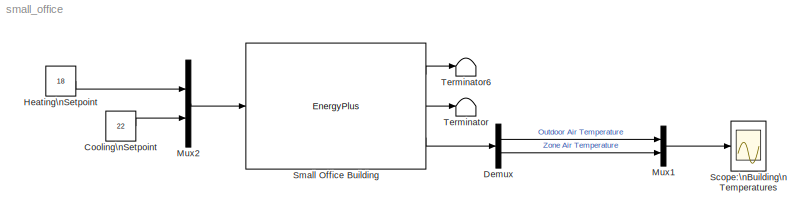
MODEL small_office
KIND model
BLOCK [Constant] Cooling\nSetpoint
  SID = 168
  Value = 22
BLOCK [Demux] Demux
  DisplayOption = bar
  Outputs = 2
  Ports = [1, 2]
  SID = 158
BLOCK [Constant] Heating\nSetpoint
  SID = 167
  Value = 18
BLOCK [Mux] Mux1
  DisplayOption = bar
  Inputs = 2
  Ports = [2, 1]
  SID = 183
BLOCK [Mux] Mux2
  DisplayOption = bar
  Inputs = 2
  Ports = [2, 1]
  SID = 292
BLOCK [Scope] Scope:\nBuilding\nTemperatures
  DataFormat = StructureWithTime
  Floating = off
  LegendLocations = 0.61037     0.80796     0.33206    0.094488
  LimitDataPoints = off
  NumInputPorts = 1
  Ports = [1]
  SID = 182
  SampleTime = 0
  SaveName = ScopeData1
  ShowLegends = on
  TimeRange = 90000
  YMax = 26
  YMin = 12
BLOCK [Reference] Small Office Building  REF=CampusEnergyModeling/Buildings/EnergyPlus
  Ports = [1, 3]
  SID = 157
  SourceBlock = CampusEnergyModeling/Buildings/EnergyPlus
  SourceType = EnergyPlus Cosimulation
  UserData = DataTag0
  UserDataPersistent = on
  fname = small_office.idf
  mlep_defaults = on
  nout = 2
  port = 0
  rel_path = on
  time_step = 60
  timeout = 10
  weather_profile = USA_IL_Chicago-OHare.Intl.AP.725300_TMY3
  work_dir = small_office
BLOCK [Terminator] Terminator
  SID = 169
BLOCK [Terminator] Terminator6
  SID = 181
LINE Cooling\nSetpoint:1 -> Mux2:2
LINE Demux:1 -> Mux1:1
LINE Demux:2 -> Mux1:2
LINE Heating\nSetpoint:1 -> Mux2:1
LINE Mux1:1 -> Scope:\nBuilding\nTemperatures:1
LINE Mux2:1 -> Small Office Building:1
LINE Small Office Building:1 -> Terminator6:1
LINE Small Office Building:2 -> Terminator:1
LINE Small Office Building:3 -> Demux:1
